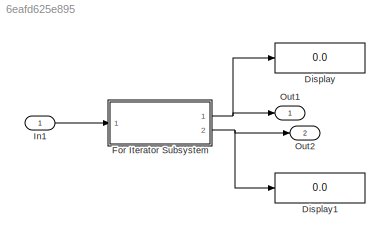
MODEL slx_6eafd625e895
KIND model
CONFIG AbsTol = auto
CONFIG EnableMultiTasking = on
CONFIG FixedStep = 0.200000
CONFIG MaxStep = auto
CONFIG MinStep = auto
CONFIG RelTol = 1e-3
CONFIG SampleTimeConstraint = Unconstrained
CONFIG Solver = FixedStepDiscrete
CONFIG SolverName = FixedStepDiscrete
CONFIG StartTime = 0.0
CONFIG StopTime = 10.0
BLOCK [Display] Display
  Decimation = 1
  Ports = [1]
BLOCK [Display] Display1
  Decimation = 1
  Ports = [1]
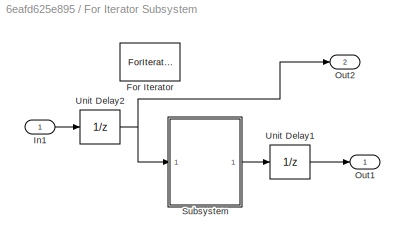
BLOCK [SubSystem] For Iterator Subsystem
  Ports = [1, 2]
  RequestExecContextInheritance = off
  TreatAsAtomicUnit = on
  Variant = off
BLOCK [ForIterator] For Iterator Subsystem/For Iterator
  IterationLimit = 3
  Ports = []
  ShowIterationPort = off
BLOCK [Inport] For Iterator Subsystem/In1
  IconDisplay = Port number
  OutDataTypeStr = double
  PortDimensions = 1
BLOCK [Outport] For Iterator Subsystem/Out1
  IconDisplay = Port number
BLOCK [Outport] For Iterator Subsystem/Out2
  IconDisplay = Port number
  Port = 2
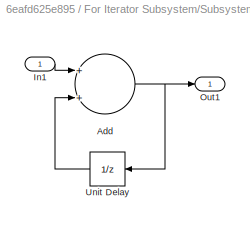
BLOCK [SubSystem] For Iterator Subsystem/Subsystem
  Ports = [1, 1]
  RequestExecContextInheritance = off
  Variant = off
BLOCK [Sum] For Iterator Subsystem/Subsystem/Add
  InputSameDT = off
  OutDataTypeStr = Inherit: Inherit via internal rule
  Ports = [2, 1]
  SaturateOnIntegerOverflow = off
BLOCK [Inport] For Iterator Subsystem/Subsystem/In1
  IconDisplay = Port number
BLOCK [Outport] For Iterator Subsystem/Subsystem/Out1
  IconDisplay = Port number
BLOCK [UnitDelay] For Iterator Subsystem/Subsystem/Unit Delay
  InputProcessing = Elements as channels (sample based)
  SampleTime = -1
BLOCK [UnitDelay] For Iterator Subsystem/Unit Delay1
  InputProcessing = Elements as channels (sample based)
  SampleTime = -1
BLOCK [UnitDelay] For Iterator Subsystem/Unit Delay2
  InputProcessing = Elements as channels (sample based)
  SampleTime = -1
BLOCK [Inport] In1
  IconDisplay = Port number
BLOCK [Outport] Out1
  IconDisplay = Port number
BLOCK [Outport] Out2
  IconDisplay = Port number
  Port = 2
LINE For Iterator Subsystem/In1:1 -> For Iterator Subsystem/Unit Delay2:1
NET For Iterator Subsystem/Subsystem/Add:1 -> For Iterator Subsystem/Subsystem/Out1:1, For Iterator Subsystem/Subsystem/Unit Delay:1
LINE For Iterator Subsystem/Subsystem/In1:1 -> For Iterator Subsystem/Subsystem/Add:1
LINE For Iterator Subsystem/Subsystem/Unit Delay:1 -> For Iterator Subsystem/Subsystem/Add:2
LINE For Iterator Subsystem/Subsystem:1 -> For Iterator Subsystem/Unit Delay1:1
LINE For Iterator Subsystem/Unit Delay1:1 -> For Iterator Subsystem/Out1:1
NET For Iterator Subsystem/Unit Delay2:1 -> For Iterator Subsystem/Out2:1, For Iterator Subsystem/Subsystem:1
NET For Iterator Subsystem:1 -> Display:1, Out1:1
NET For Iterator Subsystem:2 -> Display1:1, Out2:1
LINE In1:1 -> For Iterator Subsystem:1
note: NET lines group one-source signal fan-out (src -> all destinations, sorted); 1:1 wires keep LINE
